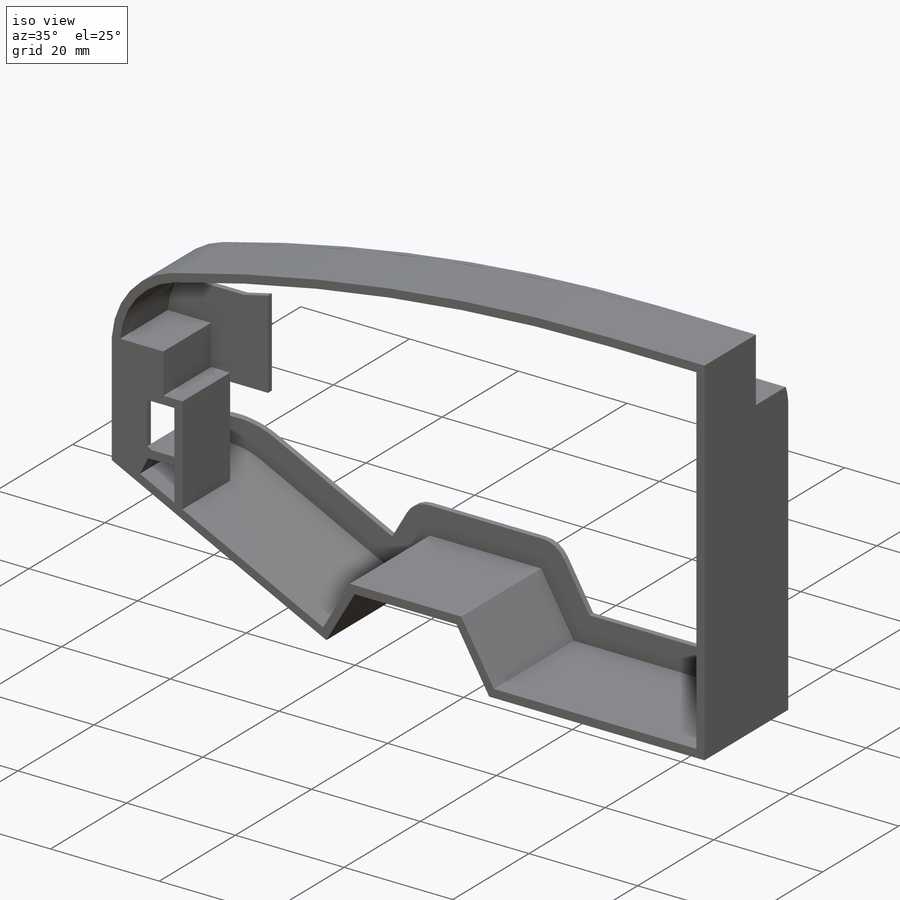
[diagram: iso view]
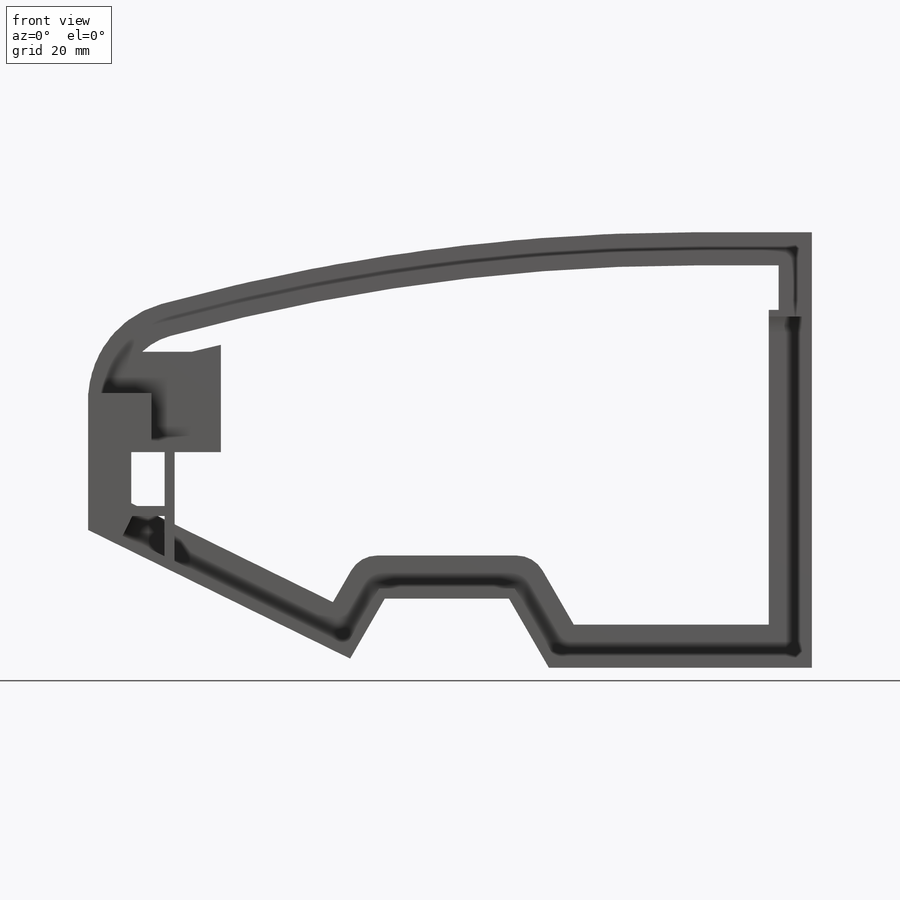
[diagram: front view]
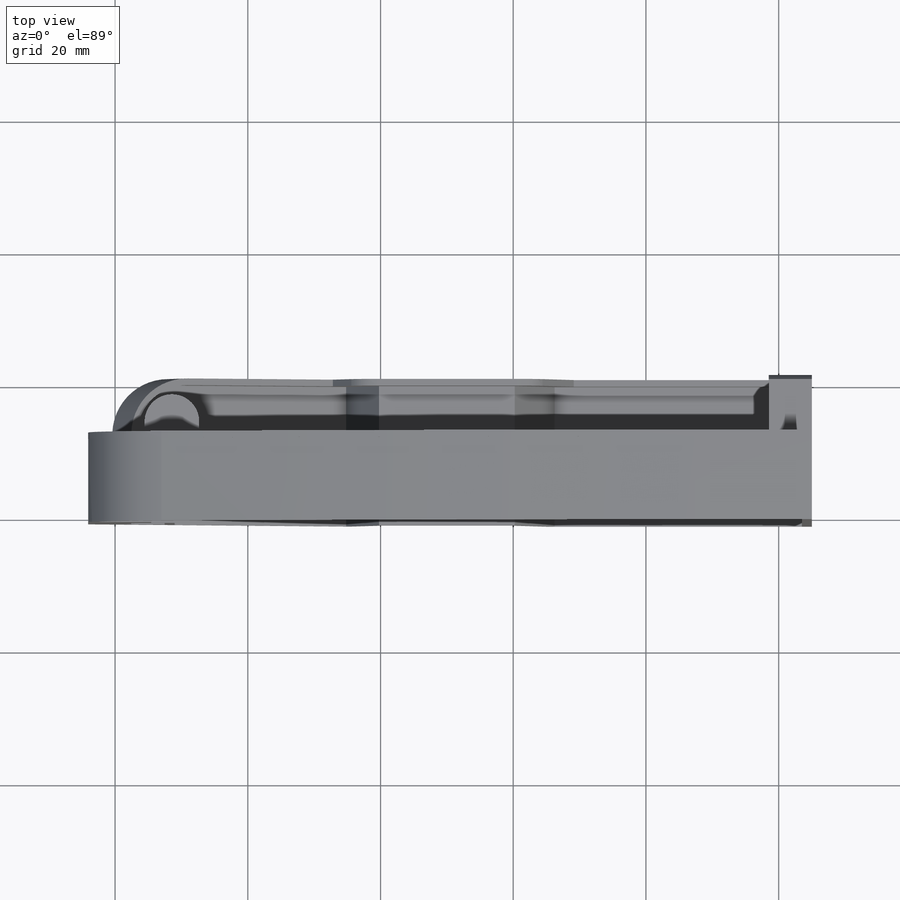
[diagram: top view]
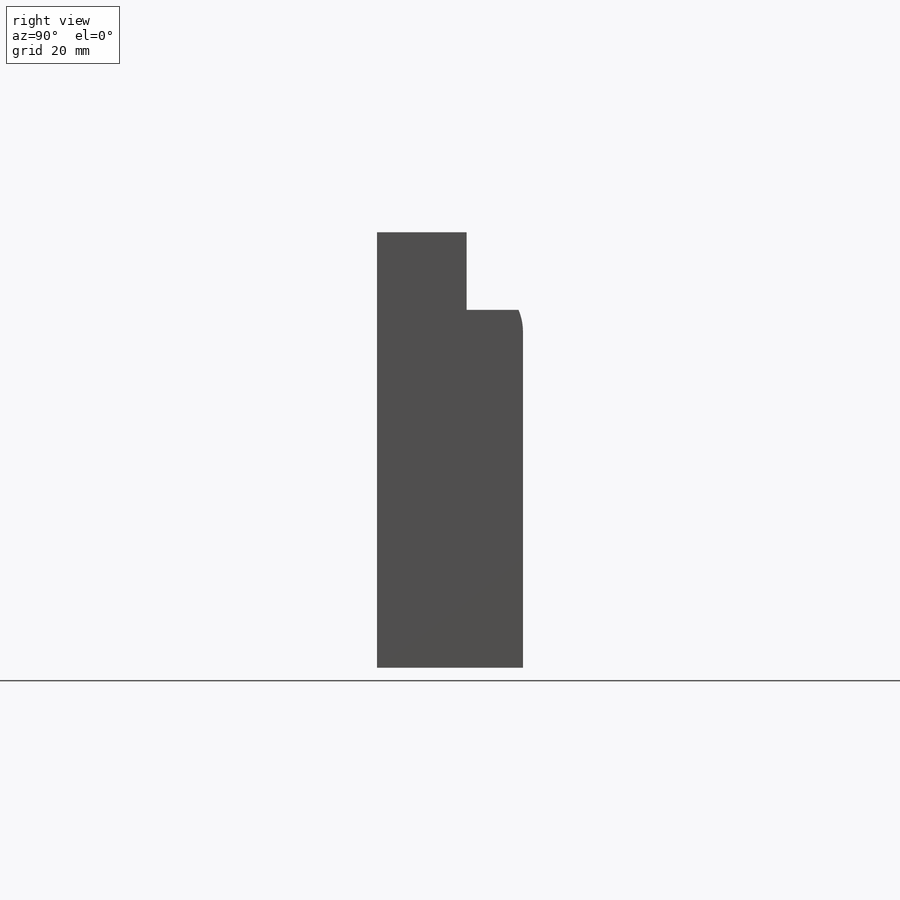
[diagram: right view]
SOLIDWORKS PART (.sldprt)
format: sldprt  version: not decoded by parser v0  size: 920,064 bytes
history: native  units: mm
features: sketch x14, extrude x14, material x1, move_body x1 + 1 further entry (+21 scaffold rows collapsed; 6 parser-record rows omitted)
feature tree (58):
  scaffold x21  (default folders/planes/origin — collapsed)
  material  "Material <not specified>"
  "CHASSIS, UNIBODY, FRONT, LEFT WALL"
  parser-record x6  (decoder bookkeeping rows leaked as tree rows — omitted from the tree; the rows remain in map.json)
  move_body  "Body-Move/Copy2"
  sketch  "Sketch1"  dims[D1=5.0mm D2=1.5mm]
  extrude  "Boss-Extrude1"  Depth=1mm
  sketch  "Sketch2"  dims[D4=5.0mm D5=0.5mm D7=5.0mm D1=1.0mm D2=5.0mm D3=5.0mm D6=1.0mm]
  extrude  "Boss-Extrude2"  Depth=1mm
  sketch  "Sketch3"
  extrude  "Boss-Extrude4"  [1 undecoded]
  sketch  "Sketch4"  dims[D1=1.0mm]
  extrude  "Boss-Extrude6"  [1 undecoded]
  sketch  "Sketch5"  dims[D1=1.5mm D2=5.0mm]
  extrude  "Boss-Extrude7"  Depth=1mm
  sketch  "Sketch6"
  extrude  "Boss-Extrude8"  [1 undecoded]
  sketch  "Sketch7"  dims[D1=1.0mm]
  extrude  "Boss-Extrude9"  Depth=5mm
  sketch  "Sketch8"
  extrude  "Boss-Extrude11"  [1 undecoded]
  sketch  "Sketch9"
  extrude  "Boss-Extrude12"  Depth=1mm
  sketch  "Sketch10"  dims[D1=1.5mm]
  extrude  "Boss-Extrude16"  [1 undecoded]
  sketch  "Sketch12"
  extrude  "Boss-Extrude18"  [1 undecoded]
  sketch  "Sketch13"
  extrude  "Boss-Extrude19"  Depth=1.5mm
  sketch  "Sketch14"  dims[D1=1.5mm]
  extrude  "Boss-Extrude21"  [1 undecoded]
  sketch  "Sketch15"  dims[D1=1.5mm]
  extrude  "Boss-Extrude22"  [1 undecoded]
decode coverage: 14 of 29 modeling features carry decoded parameters; 1 rows unclassified (native names shown)
note: 8 parameter values undecoded
summary: no parameter record found for 8 features
note: suppression state not decoded; provenance and decode notes live in map.json
